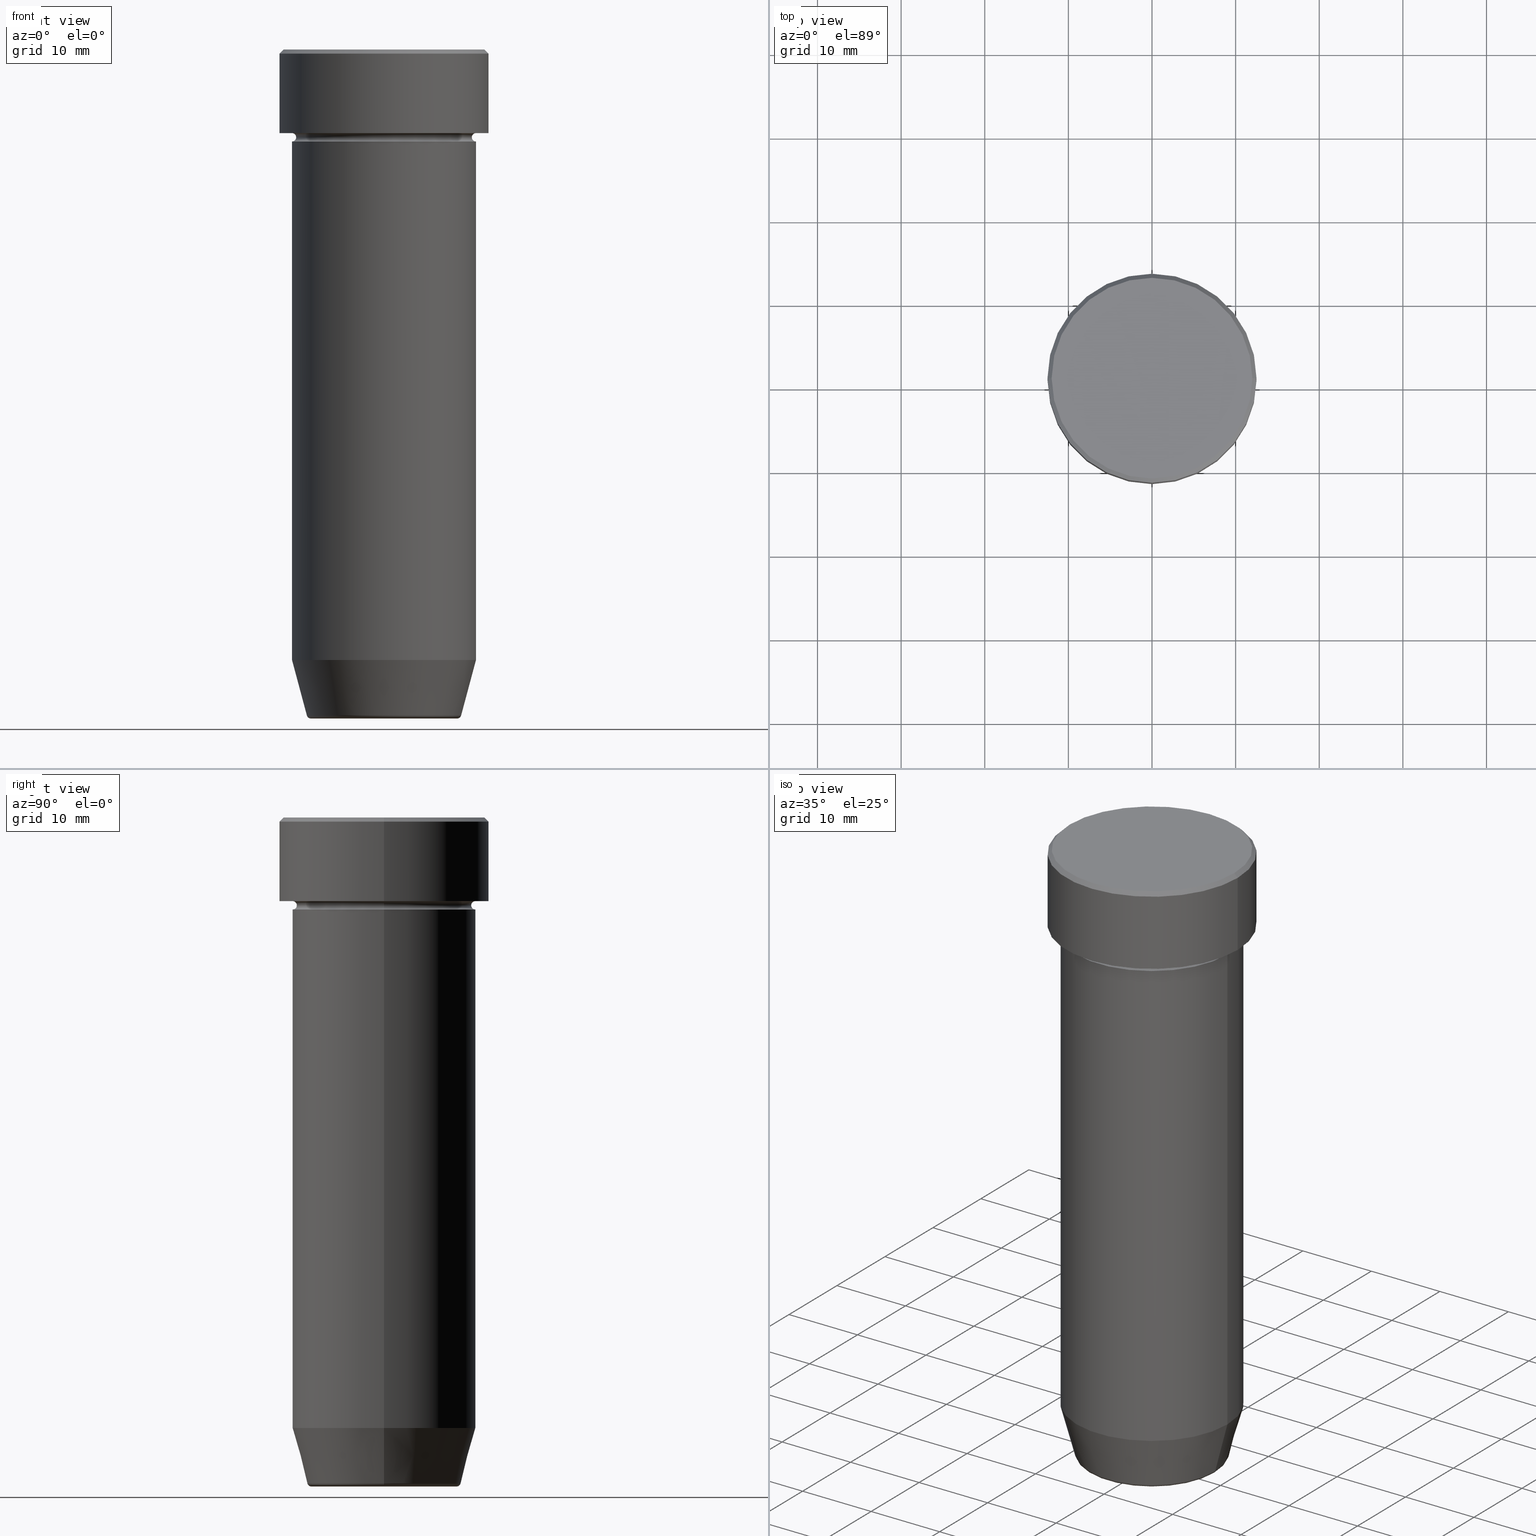
[diagram: canonical four-view strip — front | top / right | iso, engineering-drawing reading convention]
A machine part, canonical four-view strip (front | top / right | iso — engineering-drawing reading convention). The complete STEP part file that produces these views, byte-faithful:
ISO-10303-21;
HEADER;
FILE_DESCRIPTION (( 'STEP AP203' ),
    '1' );
FILE_NAME ('fd99.STEP',
    '2024-01-02T19:24:46',
    ( '' ),
    ( '' ),
    'SwSTEP 2.0',
    'SolidWorks 2019',
    '' );
FILE_SCHEMA (( 'CONFIG_CONTROL_DESIGN' ));
ENDSEC;

DATA;
#1 = EDGE_LOOP ( 'NONE', ( #567, #559, #313, #192 ) ) ;
#2 = CARTESIAN_POINT ( 'NONE',  ( 0.000000000000000000, 0.000000000000000000, 0.000000000000000000 ) ) ;
#3 = CARTESIAN_POINT ( 'NONE',  ( 0.000000000000000000, 0.000000000000000000, -10.49999999999999822 ) ) ;
#4 = VERTEX_POINT ( 'NONE', #120 ) ;
#5 = CC_DESIGN_APPROVAL ( #598, ( #29 ) ) ;
#6 = DIRECTION ( 'NONE',  ( 0.000000000000000000, -1.000000000000000000, 0.000000000000000000 ) ) ;
#7 = ORIENTED_EDGE ( 'NONE', *, *, #213, .T. ) ;
#8 = DIRECTION ( 'NONE',  ( -1.224646799147353207E-16, 1.000000000000000000, 0.000000000000000000 ) ) ;
#9 = DIRECTION ( 'NONE',  ( -0.000000000000000000, -0.000000000000000000, 1.000000000000000000 ) ) ;
#10 = AXIS2_PLACEMENT_3D ( 'NONE', #142, #250, #19 ) ;
#11 = AXIS2_PLACEMENT_3D ( 'NONE', #507, #373, #294 ) ;
#12 = VERTEX_POINT ( 'NONE', #583 ) ;
#13 = CARTESIAN_POINT ( 'NONE',  ( 0.000000000000000000, 0.000000000000000000, -27.00000000000000000 ) ) ;
#14 = VERTEX_POINT ( 'NONE', #30 ) ;
#15 = CARTESIAN_POINT ( 'NONE',  ( 0.000000000000000000, 0.000000000000000000, -10.00000000000000000 ) ) ;
#16 = CIRCLE ( 'NONE', #392, 11.00000000000000000 ) ;
#17 = EDGE_LOOP ( 'NONE', ( #139, #509, #184, #485 ) ) ;
#18 = FACE_OUTER_BOUND ( 'NONE', #419, .T. ) ;
#19 = DIRECTION ( 'NONE',  ( -1.000000000000000000, 0.000000000000000000, 0.000000000000000000 ) ) ;
#20 = FACE_OUTER_BOUND ( 'NONE', #377, .T. ) ;
#21 = LOCAL_TIME ( 20, 24, 46.00000000000000000, #589 ) ;
#22 = CARTESIAN_POINT ( 'NONE',  ( 0.000000000000000000, 0.000000000000000000, 0.000000000000000000 ) ) ;
#23 = ADVANCED_FACE ( 'NONE', ( #453 ), #223, .T. ) ;
#24 = CIRCLE ( 'NONE', #443, 11.00000000000000000 ) ;
#25 = AXIS2_PLACEMENT_3D ( 'NONE', #220, #491, #271 ) ;
#26 = PLANE ( 'NONE',  #91 ) ;
#27 = CARTESIAN_POINT ( 'NONE',  ( -11.00000000000000000, 1.347111479062088405E-15, 0.000000000000000000 ) ) ;
#28 = FACE_OUTER_BOUND ( 'NONE', #356, .T. ) ;
#29 = SECURITY_CLASSIFICATION ( '', '', #308 ) ;
#30 = CARTESIAN_POINT ( 'NONE',  ( 11.00000000000000000, 0.000000000000000000, -11.00000000000000000 ) ) ;
#31 = PERSON_AND_ORGANIZATION ( #397, #582 ) ;
#32 = ORIENTED_EDGE ( 'NONE', *, *, #351, .T. ) ;
#33 = EDGE_LOOP ( 'NONE', ( #310, #297, #339, #71 ) ) ;
#34 = DIRECTION ( 'NONE',  ( -0.000000000000000000, -0.000000000000000000, 1.000000000000000000 ) ) ;
#35 = AXIS2_PLACEMENT_3D ( 'NONE', #140, #411, #597 ) ;
#36 = EDGE_CURVE ( 'NONE', #333, #549, #201, .T. ) ;
#37 = VERTEX_POINT ( 'NONE', #318 ) ;
#38 = CALENDAR_DATE ( 2024, 2, 1 ) ;
#39 = ORIENTED_EDGE ( 'NONE', *, *, #111, .F. ) ;
#40 = ADVANCED_FACE ( 'NONE', ( #455 ), #401, .F. ) ;
#41 = CIRCLE ( 'NONE', #237, 12.00000000000000355 ) ;
#42 = ORIENTED_EDGE ( 'NONE', *, *, #104, .F. ) ;
#43 = CARTESIAN_POINT ( 'NONE',  ( -9.223655072137194821, 1.238341722557647399E-15, -79.62940952255127058 ) ) ;
#44 = ORIENTED_EDGE ( 'NONE', *, *, #412, .T. ) ;
#45 = FACE_OUTER_BOUND ( 'NONE', #430, .T. ) ;
#46 = EDGE_CURVE ( 'NONE', #500, #37, #516, .T. ) ;
#47 = ORIENTED_EDGE ( 'NONE', *, *, #256, .T. ) ;
#48 = TOROIDAL_SURFACE ( 'NONE', #451, 11.00000000000000000, 0.5000000000000000000 ) ;
#49 = CARTESIAN_POINT ( 'NONE',  ( 11.00000000000000000, 1.347111479062088405E-15, -10.50000000000000000 ) ) ;
#50 = CARTESIAN_POINT ( 'NONE',  ( 11.00000000000000000, 0.000000000000000000, -73.00000000000000000 ) ) ;
#51 = ORIENTED_EDGE ( 'NONE', *, *, #521, .F. ) ;
#52 = VECTOR ( 'NONE', #302, 1000.000000000000000 ) ;
#53 = LINE ( 'NONE', #129, #532 ) ;
#54 = VECTOR ( 'NONE', #555, 1000.000000000000114 ) ;
#55 = VERTEX_POINT ( 'NONE', #117 ) ;
#56 = DIRECTION ( 'NONE',  ( -0.000000000000000000, -0.000000000000000000, 1.000000000000000000 ) ) ;
#57 = EDGE_CURVE ( 'NONE', #14, #588, #261, .T. ) ;
#58 = ORIENTED_EDGE ( 'NONE', *, *, #368, .T. ) ;
#59 = CC_DESIGN_PERSON_AND_ORGANIZATION_ASSIGNMENT ( #299, #149, ( #74 ) ) ;
#60 = CARTESIAN_POINT ( 'NONE',  ( 11.00000000000000000, 0.000000000000000000, 0.000000000000000000 ) ) ;
#61 = AXIS2_PLACEMENT_3D ( 'NONE', #454, #236, #319 ) ;
#62 = ORIENTED_EDGE ( 'NONE', *, *, #489, .T. ) ;
#63 = AXIS2_PLACEMENT_3D ( 'NONE', #449, #408, #362 ) ;
#64 = DIRECTION ( 'NONE',  ( -0.000000000000000000, -0.000000000000000000, 1.000000000000000000 ) ) ;
#65 = EDGE_CURVE ( 'NONE', #426, #445, #483, .T. ) ;
#66 = DIRECTION ( 'NONE',  ( 0.000000000000000000, 0.000000000000000000, -1.000000000000000000 ) ) ;
#67 = PERSON_AND_ORGANIZATION ( #397, #582 ) ;
#68 = TOROIDAL_SURFACE ( 'NONE', #122, 8.740692158992660055, 0.5000000000000000000 ) ;
#69 = AXIS2_PLACEMENT_3D ( 'NONE', #360, #72, #547 ) ;
#70 = DIRECTION ( 'NONE',  ( -0.000000000000000000, -0.000000000000000000, 1.000000000000000000 ) ) ;
#71 = ORIENTED_EDGE ( 'NONE', *, *, #412, .F. ) ;
#72 = DIRECTION ( 'NONE',  ( 1.224646799147353207E-16, 1.000000000000000000, 0.000000000000000000 ) ) ;
#73 = CIRCLE ( 'NONE', #205, 11.00000000000000000 ) ;
#74 = PRODUCT ( 'fd99', 'fd99', '', ( #425 ) ) ;
#75 = FACE_OUTER_BOUND ( 'NONE', #283, .T. ) ;
#76 = CARTESIAN_POINT ( 'NONE',  ( 0.000000000000000000, 0.000000000000000000, -79.50000000000000000 ) ) ;
#77 = CIRCLE ( 'NONE', #423, 0.5000000000000004441 ) ;
#78 = CARTESIAN_POINT ( 'NONE',  ( 0.000000000000000000, 0.000000000000000000, 0.000000000000000000 ) ) ;
#79 = ADVANCED_FACE ( 'NONE', ( #165 ), #68, .T. ) ;
#80 = AXIS2_PLACEMENT_3D ( 'NONE', #560, #508, #330 ) ;
#81 = DIRECTION ( 'NONE',  ( 0.000000000000000000, -0.000000000000000000, 1.000000000000000000 ) ) ;
#82 = ORIENTED_EDGE ( 'NONE', *, *, #300, .T. ) ;
#83 = CC_DESIGN_DATE_AND_TIME_ASSIGNMENT ( #494, #452, ( #29 ) ) ;
#84 = DIRECTION ( 'NONE',  ( -0.000000000000000000, -0.000000000000000000, 1.000000000000000000 ) ) ;
#85 = LINE ( 'NONE', #380, #276 ) ;
#86 = EDGE_CURVE ( 'NONE', #277, #55, #98, .T. ) ;
#87 = DIRECTION ( 'NONE',  ( -1.000000000000000000, 0.000000000000000000, 0.000000000000000000 ) ) ;
#88 = ORIENTED_EDGE ( 'NONE', *, *, #493, .F. ) ;
#89 = DIRECTION ( 'NONE',  ( -0.000000000000000000, -0.000000000000000000, 1.000000000000000000 ) ) ;
#90 = FACE_OUTER_BOUND ( 'NONE', #33, .T. ) ;
#91 = AXIS2_PLACEMENT_3D ( 'NONE', #390, #253, #432 ) ;
#92 = ORIENTED_EDGE ( 'NONE', *, *, #446, .F. ) ;
#93 = COORDINATED_UNIVERSAL_TIME_OFFSET ( 1, 0, .AHEAD. ) ;
#94 = DIRECTION ( 'NONE',  ( 0.000000000000000000, 0.000000000000000000, -1.000000000000000000 ) ) ;
#95 = EDGE_LOOP ( 'NONE', ( #517, #245, #110, #163 ) ) ;
#96 = AXIS2_PLACEMENT_3D ( 'NONE', #2, #578, #440 ) ;
#97 = UNCERTAINTY_MEASURE_WITH_UNIT (LENGTH_MEASURE( 1.000000000000000082E-05 ), #526, 'distance_accuracy_value', 'NONE');
#98 = CIRCLE ( 'NONE', #558, 12.00000000000000355 ) ;
#99 = ORIENTED_EDGE ( 'NONE', *, *, #202, .F. ) ;
#100 = LINE ( 'NONE', #479, #133 ) ;
#101 = ORIENTED_EDGE ( 'NONE', *, *, #439, .T. ) ;
#102 = FACE_OUTER_BOUND ( 'NONE', #95, .T. ) ;
#103 = LOCAL_TIME ( 20, 24, 46.00000000000000000, #93 ) ;
#104 = EDGE_CURVE ( 'NONE', #459, #546, #194, .T. ) ;
#105 = DIRECTION ( 'NONE',  ( -0.000000000000000000, -0.000000000000000000, 1.000000000000000000 ) ) ;
#106 = VECTOR ( 'NONE', #64, 1000.000000000000000 ) ;
#107 = CARTESIAN_POINT ( 'NONE',  ( 8.740692158992660055, 0.000000000000000000, -79.50000000000000000 ) ) ;
#108 =( GEOMETRIC_REPRESENTATION_CONTEXT ( 3 ) GLOBAL_UNCERTAINTY_ASSIGNED_CONTEXT ( ( #97 ) ) GLOBAL_UNIT_ASSIGNED_CONTEXT ( ( #526, #572, #301 ) ) REPRESENTATION_CONTEXT ( 'NONE', 'WORKASPACE' ) );
#109 = DIRECTION ( 'NONE',  ( -1.000000000000000000, 0.000000000000000000, 0.000000000000000000 ) ) ;
#110 = ORIENTED_EDGE ( 'NONE', *, *, #172, .F. ) ;
#111 = EDGE_CURVE ( 'NONE', #37, #588, #364, .T. ) ;
#112 = ORIENTED_EDGE ( 'NONE', *, *, #488, .T. ) ;
#113 = APPROVAL_STATUS ( 'not_yet_approved' ) ;
#114 = DIRECTION ( 'NONE',  ( -0.000000000000000000, -0.000000000000000000, 1.000000000000000000 ) ) ;
#115 = CIRCLE ( 'NONE', #497, 0.5000000000000004441 ) ;
#116 = PERSON_AND_ORGANIZATION ( #397, #582 ) ;
#117 = CARTESIAN_POINT ( 'NONE',  ( -12.00000000000000355, 0.000000000000000000, 0.000000000000000000 ) ) ;
#118 = PRODUCT_DEFINITION ( 'NEZN�M�', '', #191, #468 ) ;
#119 = ORIENTED_EDGE ( 'NONE', *, *, #348, .T. ) ;
#120 = CARTESIAN_POINT ( 'NONE',  ( 12.50000000000000000, 0.000000000000000000, -0.4999999999999988343 ) ) ;
#121 = CARTESIAN_POINT ( 'NONE',  ( 12.50000000000000000, 0.000000000000000000, -10.00000000000000000 ) ) ;
#122 = AXIS2_PLACEMENT_3D ( 'NONE', #76, #448, #428 ) ;
#123 = DIRECTION ( 'NONE',  ( 1.000000000000000000, 0.000000000000000000, 0.000000000000000000 ) ) ;
#124 = PLANE ( 'NONE',  #429 ) ;
#125 = DIRECTION ( 'NONE',  ( -0.000000000000000000, -0.000000000000000000, 1.000000000000000000 ) ) ;
#126 = VECTOR ( 'NONE', #556, 999.9999999999998863 ) ;
#127 = PRODUCT_RELATED_PRODUCT_CATEGORY ( 'detail', '', ( #74 ) ) ;
#128 = VERTEX_POINT ( 'NONE', #135 ) ;
#129 = CARTESIAN_POINT ( 'NONE',  ( -12.50000000000000000, 1.530808498934191521E-15, 0.000000000000000000 ) ) ;
#130 = EDGE_CURVE ( 'NONE', #4, #128, #505, .T. ) ;
#131 = DIRECTION ( 'NONE',  ( -0.000000000000000000, -0.000000000000000000, 1.000000000000000000 ) ) ;
#132 = FACE_OUTER_BOUND ( 'NONE', #279, .T. ) ;
#133 = VECTOR ( 'NONE', #227, 1000.000000000000000 ) ;
#134 = ORIENTED_EDGE ( 'NONE', *, *, #137, .T. ) ;
#135 = CARTESIAN_POINT ( 'NONE',  ( -12.50000000000000000, 1.530808498934191521E-15, -0.4999999999999988343 ) ) ;
#136 = DIRECTION ( 'NONE',  ( 1.000000000000000000, 0.000000000000000000, 0.000000000000000000 ) ) ;
#137 = EDGE_CURVE ( 'NONE', #445, #426, #177, .T. ) ;
#138 = DIRECTION ( 'NONE',  ( 1.000000000000000000, 0.000000000000000000, 0.000000000000000000 ) ) ;
#139 = ORIENTED_EDGE ( 'NONE', *, *, #46, .T. ) ;
#140 = CARTESIAN_POINT ( 'NONE',  ( 0.000000000000000000, 0.000000000000000000, 0.000000000000000000 ) ) ;
#141 = ORIENTED_EDGE ( 'NONE', *, *, #439, .F. ) ;
#142 = CARTESIAN_POINT ( 'NONE',  ( 0.000000000000000000, 0.000000000000000000, 0.000000000000000000 ) ) ;
#143 = ORIENTED_EDGE ( 'NONE', *, *, #65, .F. ) ;
#144 = EDGE_CURVE ( 'NONE', #596, #218, #77, .T. ) ;
#145 = CARTESIAN_POINT ( 'NONE',  ( 0.000000000000000000, 0.000000000000000000, -0.4999999999999988343 ) ) ;
#146 = CARTESIAN_POINT ( 'NONE',  ( 0.000000000000000000, 0.000000000000000000, -11.00000000000000000 ) ) ;
#147 = AXIS2_PLACEMENT_3D ( 'NONE', #266, #215, #161 ) ;
#148 = CARTESIAN_POINT ( 'NONE',  ( -12.50000000000000000, 1.530808498934191521E-15, -10.00000000000000000 ) ) ;
#149 = PERSON_AND_ORGANIZATION_ROLE ( 'design_owner' ) ;
#150 = ORIENTED_EDGE ( 'NONE', *, *, #446, .T. ) ;
#151 = AXIS2_PLACEMENT_3D ( 'NONE', #406, #125, #87 ) ;
#152 = FACE_OUTER_BOUND ( 'NONE', #321, .T. ) ;
#153 = APPROVAL_DATE_TIME ( #164, #548 ) ;
#154 = CIRCLE ( 'NONE', #492, 9.223655072137194821 ) ;
#155 = EDGE_CURVE ( 'NONE', #459, #549, #154, .T. ) ;
#156 = CARTESIAN_POINT ( 'NONE',  ( 0.000000000000000000, 0.000000000000000000, 0.000000000000000000 ) ) ;
#157 = TOROIDAL_SURFACE ( 'NONE', #502, 11.00000000000000000, 0.5000000000000000000 ) ;
#158 = ORIENTED_EDGE ( 'NONE', *, *, #458, .F. ) ;
#159 = CONICAL_SURFACE ( 'NONE', #478, 9.124355652982140796, 0.2617993877991491303 ) ;
#160 = PERSON_AND_ORGANIZATION_ROLE ( 'classification_officer' ) ;
#161 = DIRECTION ( 'NONE',  ( 1.000000000000000000, 0.000000000000000000, 0.000000000000000000 ) ) ;
#162 = CC_DESIGN_PERSON_AND_ORGANIZATION_ASSIGNMENT ( #595, #219, ( #118 ) ) ;
#163 = ORIENTED_EDGE ( 'NONE', *, *, #166, .F. ) ;
#164 = DATE_AND_TIME ( #317, #21 ) ;
#165 = FACE_OUTER_BOUND ( 'NONE', #484, .T. ) ;
#166 = EDGE_CURVE ( 'NONE', #55, #128, #424, .T. ) ;
#167 = CIRCLE ( 'NONE', #400, 10.49999999999999822 ) ;
#168 = ADVANCED_FACE ( 'NONE', ( #384 ), #159, .T. ) ;
#169 = ORIENTED_EDGE ( 'NONE', *, *, #351, .F. ) ;
#170 = ORIENTED_EDGE ( 'NONE', *, *, #586, .T. ) ;
#171 = AXIS2_PLACEMENT_3D ( 'NONE', #534, #70, #263 ) ;
#172 = EDGE_CURVE ( 'NONE', #128, #4, #208, .T. ) ;
#173 = ORIENTED_EDGE ( 'NONE', *, *, #155, .F. ) ;
#174 = APPROVAL_STATUS ( 'not_yet_approved' ) ;
#175 = DIRECTION ( 'NONE',  ( 1.000000000000000000, 0.000000000000000000, 0.000000000000000000 ) ) ;
#176 = FACE_OUTER_BOUND ( 'NONE', #422, .T. ) ;
#177 = CIRCLE ( 'NONE', #252, 12.50000000000000000 ) ;
#178 = EDGE_CURVE ( 'NONE', #445, #4, #100, .T. ) ;
#179 = DIRECTION ( 'NONE',  ( 1.000000000000000000, 0.000000000000000000, 0.000000000000000000 ) ) ;
#180 = EDGE_LOOP ( 'NONE', ( #101, #119, #188, #186 ) ) ;
#181 = CARTESIAN_POINT ( 'NONE',  ( -11.00000000000000000, 1.347111479062088405E-15, 0.000000000000000000 ) ) ;
#182 = DIRECTION ( 'NONE',  ( 1.000000000000000000, 0.000000000000000000, 0.000000000000000000 ) ) ;
#183 = AXIS2_PLACEMENT_3D ( 'NONE', #347, #243, #396 ) ;
#184 = ORIENTED_EDGE ( 'NONE', *, *, #57, .F. ) ;
#185 = DIRECTION ( 'NONE',  ( -0.000000000000000000, -0.000000000000000000, 1.000000000000000000 ) ) ;
#186 = ORIENTED_EDGE ( 'NONE', *, *, #368, .F. ) ;
#187 = CARTESIAN_POINT ( 'NONE',  ( 9.223655072137194821, 0.000000000000000000, -79.62940952255127058 ) ) ;
#188 = ORIENTED_EDGE ( 'NONE', *, *, #211, .F. ) ;
#189 = PERSON_AND_ORGANIZATION ( #397, #582 ) ;
#190 = CARTESIAN_POINT ( 'NONE',  ( 0.000000000000000000, 0.000000000000000000, -73.00000000000000000 ) ) ;
#191 = PRODUCT_DEFINITION_FORMATION_WITH_SPECIFIED_SOURCE ( 'LIBOVOLN�', '', #74, .NOT_KNOWN. ) ;
#192 = ORIENTED_EDGE ( 'NONE', *, *, #489, .F. ) ;
#193 = APPROVAL_ROLE ( '' ) ;
#194 = LINE ( 'NONE', #280, #54 ) ;
#195 = ORIENTED_EDGE ( 'NONE', *, *, #514, .F. ) ;
#196 = AXIS2_PLACEMENT_3D ( 'NONE', #533, #316, #179 ) ;
#197 = CARTESIAN_POINT ( 'NONE',  ( 0.000000000000000000, 0.000000000000000000, -27.00000000000000000 ) ) ;
#198 = CARTESIAN_POINT ( 'NONE',  ( 0.000000000000000000, 0.000000000000000000, 0.000000000000000000 ) ) ;
#199 = DIRECTION ( 'NONE',  ( -0.000000000000000000, -0.000000000000000000, 1.000000000000000000 ) ) ;
#200 = ADVANCED_FACE ( 'NONE', ( #413 ), #525, .T. ) ;
#201 = CIRCLE ( 'NONE', #69, 0.5000000000000004441 ) ;
#202 = EDGE_CURVE ( 'NONE', #12, #596, #577, .T. ) ;
#203 = CARTESIAN_POINT ( 'NONE',  ( 0.000000000000000000, 0.000000000000000000, -10.49999999999999822 ) ) ;
#204 = CARTESIAN_POINT ( 'NONE',  ( -11.00000000000000000, 1.347111479062088405E-15, -11.00000000000000000 ) ) ;
#205 = AXIS2_PLACEMENT_3D ( 'NONE', #13, #185, #322 ) ;
#206 = COORDINATED_UNIVERSAL_TIME_OFFSET ( 1, 0, .AHEAD. ) ;
#207 = DIRECTION ( 'NONE',  ( -0.000000000000000000, -0.000000000000000000, 1.000000000000000000 ) ) ;
#208 = CIRCLE ( 'NONE', #528, 12.50000000000000000 ) ;
#209 = APPLICATION_PROTOCOL_DEFINITION ( 'international standard', 'config_control_design', 1994, #249 ) ;
#210 = ADVANCED_FACE ( 'NONE', ( #580 ), #490, .T. ) ;
#211 = EDGE_CURVE ( 'NONE', #329, #387, #303, .T. ) ;
#212 = CIRCLE ( 'NONE', #309, 11.00000000000000000 ) ;
#213 = EDGE_CURVE ( 'NONE', #333, #307, #477, .T. ) ;
#214 = PERSON_AND_ORGANIZATION ( #397, #582 ) ;
#215 = DIRECTION ( 'NONE',  ( -0.000000000000000000, -0.000000000000000000, 1.000000000000000000 ) ) ;
#216 = CONICAL_SURFACE ( 'NONE', #10, 12.00000000000000355, 0.7853981633974465026 ) ;
#217 = VECTOR ( 'NONE', #284, 1000.000000000000000 ) ;
#218 = VERTEX_POINT ( 'NONE', #282 ) ;
#219 = PERSON_AND_ORGANIZATION_ROLE ( 'creator' ) ;
#220 = CARTESIAN_POINT ( 'NONE',  ( 0.000000000000000000, 0.000000000000000000, -27.00000000000000000 ) ) ;
#221 = ORIENTED_EDGE ( 'NONE', *, *, #514, .T. ) ;
#222 = EDGE_LOOP ( 'NONE', ( #470, #592 ) ) ;
#223 = CYLINDRICAL_SURFACE ( 'NONE', #503, 11.00000000000000000 ) ;
#224 = CARTESIAN_POINT ( 'NONE',  ( 11.00000000000000000, 0.000000000000000000, -27.00000000000000000 ) ) ;
#225 = EDGE_CURVE ( 'NONE', #307, #333, #431, .T. ) ;
#226 = AXIS2_PLACEMENT_3D ( 'NONE', #354, #114, #590 ) ;
#227 = DIRECTION ( 'NONE',  ( -0.000000000000000000, -0.000000000000000000, 1.000000000000000000 ) ) ;
#228 = ADVANCED_FACE ( 'NONE', ( #75 ), #157, .F. ) ;
#229 = CARTESIAN_POINT ( 'NONE',  ( -11.00000000000000000, 1.347111479062088405E-15, -27.00000000000000000 ) ) ;
#230 = CARTESIAN_POINT ( 'NONE',  ( 0.000000000000000000, 0.000000000000000000, -27.00000000000000000 ) ) ;
#231 = EDGE_LOOP ( 'NONE', ( #238, #274 ) ) ;
#232 = APPROVAL_DATE_TIME ( #336, #598 ) ;
#233 = DIRECTION ( 'NONE',  ( 1.000000000000000000, 0.000000000000000000, 0.000000000000000000 ) ) ;
#234 = ORIENTED_EDGE ( 'NONE', *, *, #225, .T. ) ;
#235 = DIRECTION ( 'NONE',  ( -1.000000000000000000, -1.224646799147353454E-16, 0.000000000000000000 ) ) ;
#236 = DIRECTION ( 'NONE',  ( -0.000000000000000000, -0.000000000000000000, 1.000000000000000000 ) ) ;
#237 = AXIS2_PLACEMENT_3D ( 'NONE', #593, #545, #123 ) ;
#238 = ORIENTED_EDGE ( 'NONE', *, *, #211, .T. ) ;
#239 = DIRECTION ( 'NONE',  ( -1.000000000000000000, 0.000000000000000000, 0.000000000000000000 ) ) ;
#240 = CARTESIAN_POINT ( 'NONE',  ( -11.00000000000000000, 0.000000000000000000, -10.00000000000000000 ) ) ;
#241 = EDGE_LOOP ( 'NONE', ( #293, #62, #58, #158 ) ) ;
#242 = DIRECTION ( 'NONE',  ( 1.000000000000000000, 0.000000000000000000, 0.000000000000000000 ) ) ;
#243 = DIRECTION ( 'NONE',  ( 0.000000000000000000, 0.000000000000000000, -1.000000000000000000 ) ) ;
#244 = AXIS2_PLACEMENT_3D ( 'NONE', #190, #9, #501 ) ;
#245 = ORIENTED_EDGE ( 'NONE', *, *, #521, .T. ) ;
#246 = CARTESIAN_POINT ( 'NONE',  ( -8.740692158992660055, 1.099999016768739653E-15, -80.00000000000000000 ) ) ;
#247 = ADVANCED_FACE ( 'NONE', ( #132 ), #324, .F. ) ;
#248 = EDGE_CURVE ( 'NONE', #549, #459, #444, .T. ) ;
#249 = APPLICATION_CONTEXT ( 'configuration controlled 3d designs of mechanical parts and assemblies' ) ;
#250 = DIRECTION ( 'NONE',  ( 0.000000000000000000, 0.000000000000000000, -1.000000000000000000 ) ) ;
#251 = DIRECTION ( 'NONE',  ( -0.000000000000000000, -0.000000000000000000, 1.000000000000000000 ) ) ;
#252 = AXIS2_PLACEMENT_3D ( 'NONE', #15, #89, #379 ) ;
#253 = DIRECTION ( 'NONE',  ( 0.000000000000000000, 0.000000000000000000, -1.000000000000000000 ) ) ;
#254 = CALENDAR_DATE ( 2024, 2, 1 ) ;
#255 = CC_DESIGN_SECURITY_CLASSIFICATION ( #29, ( #191 ) ) ;
#256 = EDGE_CURVE ( 'NONE', #55, #277, #41, .T. ) ;
#257 = DIRECTION ( 'NONE',  ( -0.000000000000000000, -0.000000000000000000, 1.000000000000000000 ) ) ;
#258 = CARTESIAN_POINT ( 'NONE',  ( 0.000000000000000000, 0.000000000000000000, -10.00000000000000000 ) ) ;
#259 = CYLINDRICAL_SURFACE ( 'NONE', #457, 11.00000000000000000 ) ;
#260 = CC_DESIGN_PERSON_AND_ORGANIZATION_ASSIGNMENT ( #214, #585, ( #191 ) ) ;
#261 = CIRCLE ( 'NONE', #147, 11.00000000000000000 ) ;
#262 = ADVANCED_FACE ( 'NONE', ( #376 ), #469, .T. ) ;
#263 = DIRECTION ( 'NONE',  ( 1.000000000000000000, 0.000000000000000000, 0.000000000000000000 ) ) ;
#264 = ORIENTED_EDGE ( 'NONE', *, *, #248, .F. ) ;
#265 = APPROVAL_ROLE ( '' ) ;
#266 = CARTESIAN_POINT ( 'NONE',  ( 0.000000000000000000, 0.000000000000000000, -11.00000000000000000 ) ) ;
#267 = EDGE_LOOP ( 'NONE', ( #367, #372, #415, #363 ) ) ;
#268 = CARTESIAN_POINT ( 'NONE',  ( 0.000000000000000000, 0.000000000000000000, -80.00000000000000000 ) ) ;
#269 = ORIENTED_EDGE ( 'NONE', *, *, #86, .T. ) ;
#270 = DATE_AND_TIME ( #273, #472 ) ;
#271 = DIRECTION ( 'NONE',  ( -1.000000000000000000, 0.000000000000000000, -0.000000000000000000 ) ) ;
#272 = DIRECTION ( 'NONE',  ( 1.000000000000000000, 0.000000000000000000, 0.000000000000000000 ) ) ;
#273 = CALENDAR_DATE ( 2024, 2, 1 ) ;
#274 = ORIENTED_EDGE ( 'NONE', *, *, #458, .T. ) ;
#275 = CARTESIAN_POINT ( 'NONE',  ( 12.00000000000000355, 1.469576158976824342E-15, 0.000000000000000000 ) ) ;
#276 = VECTOR ( 'NONE', #369, 1000.000000000000114 ) ;
#277 = VERTEX_POINT ( 'NONE', #529 ) ;
#278 = AXIS2_PLACEMENT_3D ( 'NONE', #268, #366, #552 ) ;
#279 = EDGE_LOOP ( 'NONE', ( #584, #539, #44, #169 ) ) ;
#280 = CARTESIAN_POINT ( 'NONE',  ( 9.124355652982140796, 0.000000000000000000, -80.00000000000000000 ) ) ;
#281 = DIRECTION ( 'NONE',  ( -0.000000000000000000, -0.000000000000000000, 1.000000000000000000 ) ) ;
#282 = CARTESIAN_POINT ( 'NONE',  ( 11.00000000000000000, 1.347111479062088405E-15, -10.00000000000000000 ) ) ;
#283 = EDGE_LOOP ( 'NONE', ( #99, #221, #82, #92 ) ) ;
#284 = DIRECTION ( 'NONE',  ( -0.000000000000000000, -0.000000000000000000, 1.000000000000000000 ) ) ;
#285 = FACE_OUTER_BOUND ( 'NONE', #17, .T. ) ;
#286 = TOROIDAL_SURFACE ( 'NONE', #61, 8.740692158992660055, 0.5000000000000000000 ) ;
#287 = ADVANCED_FACE ( 'NONE', ( #28 ), #259, .T. ) ;
#288 = ORIENTED_EDGE ( 'NONE', *, *, #213, .F. ) ;
#289 = DIRECTION ( 'NONE',  ( -0.000000000000000000, -0.000000000000000000, 1.000000000000000000 ) ) ;
#290 = FACE_OUTER_BOUND ( 'NONE', #544, .T. ) ;
#291 = ORIENTED_EDGE ( 'NONE', *, *, #352, .T. ) ;
#292 = CARTESIAN_POINT ( 'NONE',  ( 0.000000000000000000, 0.000000000000000000, -80.00000000000000000 ) ) ;
#293 = ORIENTED_EDGE ( 'NONE', *, *, #348, .F. ) ;
#294 = DIRECTION ( 'NONE',  ( 1.000000000000000000, 0.000000000000000000, 0.000000000000000000 ) ) ;
#295 = DIRECTION ( 'NONE',  ( 1.000000000000000000, 0.000000000000000000, 0.000000000000000000 ) ) ;
#296 = CC_DESIGN_APPROVAL ( #548, ( #191 ) ) ;
#297 = ORIENTED_EDGE ( 'NONE', *, *, #144, .T. ) ;
#298 = DIRECTION ( 'NONE',  ( 0.000000000000000000, -1.000000000000000000, 0.000000000000000000 ) ) ;
#299 = PERSON_AND_ORGANIZATION ( #397, #582 ) ;
#300 = EDGE_CURVE ( 'NONE', #588, #14, #24, .T. ) ;
#301 =( NAMED_UNIT ( * ) SI_UNIT ( $, .STERADIAN. ) SOLID_ANGLE_UNIT ( ) );
#302 = DIRECTION ( 'NONE',  ( -0.000000000000000000, -0.000000000000000000, 1.000000000000000000 ) ) ;
#303 = CIRCLE ( 'NONE', #536, 11.00000000000000000 ) ;
#304 = CLOSED_SHELL ( 'NONE', ( #346, #434, #228, #537, #338, #570, #562, #262, #395, #287, #375, #247, #200 ) ) ;
#305 = EDGE_CURVE ( 'NONE', #307, #459, #476, .T. ) ;
#306 = VERTEX_POINT ( 'NONE', #433 ) ;
#307 = VERTEX_POINT ( 'NONE', #394 ) ;
#308 = SECURITY_CLASSIFICATION_LEVEL ( 'unclassified' ) ;
#310 = ORIENTED_EDGE ( 'NONE', *, *, #202, .T. ) ;
#309 = AXIS2_PLACEMENT_3D ( 'NONE', #197, #435, #531 ) ;
#311 = ADVANCED_BREP_SHAPE_REPRESENTATION ( 'fd99', ( #331, #527, #463 ), #108 ) ;
#312 = AXIS2_PLACEMENT_3D ( 'NONE', #557, #418, #138 ) ;
#313 = ORIENTED_EDGE ( 'NONE', *, *, #104, .T. ) ;
#314 = APPROVAL_ROLE ( '' ) ;
#315 = DIRECTION ( 'NONE',  ( -0.000000000000000000, -0.000000000000000000, 1.000000000000000000 ) ) ;
#316 = DIRECTION ( 'NONE',  ( -0.000000000000000000, -0.000000000000000000, 1.000000000000000000 ) ) ;
#317 = CALENDAR_DATE ( 2024, 2, 1 ) ;
#318 = CARTESIAN_POINT ( 'NONE',  ( -11.00000000000000000, 1.347111479062088405E-15, -27.00000000000000000 ) ) ;
#319 = DIRECTION ( 'NONE',  ( 1.000000000000000000, 0.000000000000000000, 0.000000000000000000 ) ) ;
#320 = CC_DESIGN_APPROVAL ( #427, ( #118 ) ) ;
#321 = EDGE_LOOP ( 'NONE', ( #405, #143 ) ) ;
#322 = DIRECTION ( 'NONE',  ( 1.000000000000000000, 0.000000000000000000, 0.000000000000000000 ) ) ;
#323 = AXIS2_PLACEMENT_3D ( 'NONE', #198, #480, #388 ) ;
#324 = TOROIDAL_SURFACE ( 'NONE', #63, 11.00000000000000000, 0.5000000000000000000 ) ;
#325 = DIRECTION ( 'NONE',  ( -0.000000000000000000, -0.000000000000000000, 1.000000000000000000 ) ) ;
#326 = ORIENTED_EDGE ( 'NONE', *, *, #36, .T. ) ;
#327 = CC_DESIGN_PERSON_AND_ORGANIZATION_ASSIGNMENT ( #447, #160, ( #29 ) ) ;
#328 = DIRECTION ( 'NONE',  ( -1.000000000000000000, 1.224646799147353454E-16, 0.000000000000000000 ) ) ;
#329 = VERTEX_POINT ( 'NONE', #575 ) ;
#330 = DIRECTION ( 'NONE',  ( 1.000000000000000000, 0.000000000000000000, 0.000000000000000000 ) ) ;
#331 = MANIFOLD_SOLID_BREP ( 'Zkosen�1', #304 ) ;
#332 = EDGE_CURVE ( 'NONE', #500, #14, #475, .T. ) ;
#333 = VERTEX_POINT ( 'NONE', #246 ) ;
#334 = DIRECTION ( 'NONE',  ( 1.000000000000000000, 0.000000000000000000, 0.000000000000000000 ) ) ;
#335 = ORIENTED_EDGE ( 'NONE', *, *, #166, .T. ) ;
#336 = DATE_AND_TIME ( #383, #103 ) ;
#337 = DIRECTION ( 'NONE',  ( 0.000000000000000000, 0.000000000000000000, -1.000000000000000000 ) ) ;
#338 = ADVANCED_FACE ( 'NONE', ( #18 ), #340, .T. ) ;
#339 = ORIENTED_EDGE ( 'NONE', *, *, #352, .F. ) ;
#340 = CYLINDRICAL_SURFACE ( 'NONE', #323, 12.50000000000000000 ) ;
#341 = CARTESIAN_POINT ( 'NONE',  ( 11.00000000000000000, 0.000000000000000000, 0.000000000000000000 ) ) ;
#342 = TOROIDAL_SURFACE ( 'NONE', #355, 11.00000000000000000, 0.5000000000000000000 ) ;
#343 = PLANE ( 'NONE',  #183 ) ;
#344 = ADVANCED_FACE ( 'NONE', ( #438 ), #522, .T. ) ;
#345 = CIRCLE ( 'NONE', #381, 11.00000000000000000 ) ;
#346 = ADVANCED_FACE ( 'NONE', ( #102 ), #216, .T. ) ;
#347 = CARTESIAN_POINT ( 'NONE',  ( 0.000000000000000000, 12.50000000000000000, -10.00000000000000000 ) ) ;
#348 = EDGE_CURVE ( 'NONE', #306, #387, #391, .T. ) ;
#349 = CARTESIAN_POINT ( 'NONE',  ( 0.000000000000000000, 0.000000000000000000, -10.49999999999999822 ) ) ;
#350 = CIRCLE ( 'NONE', #464, 0.5000000000000004441 ) ;
#351 = EDGE_CURVE ( 'NONE', #218, #520, #345, .T. ) ;
#352 = EDGE_CURVE ( 'NONE', #520, #218, #16, .T. ) ;
#353 = DIRECTION ( 'NONE',  ( 1.000000000000000000, 0.000000000000000000, 0.000000000000000000 ) ) ;
#354 = CARTESIAN_POINT ( 'NONE',  ( 0.000000000000000000, 0.000000000000000000, -10.00000000000000000 ) ) ;
#355 = AXIS2_PLACEMENT_3D ( 'NONE', #414, #416, #361 ) ;
#356 = EDGE_LOOP ( 'NONE', ( #39, #170, #442, #563 ) ) ;
#357 = ORIENTED_EDGE ( 'NONE', *, *, #130, .F. ) ;
#358 = CC_DESIGN_DATE_AND_TIME_ASSIGNMENT ( #270, #404, ( #118 ) ) ;
#359 = AXIS2_PLACEMENT_3D ( 'NONE', #540, #34, #353 ) ;
#360 = CARTESIAN_POINT ( 'NONE',  ( -8.740692158992660055, 1.070426067484272913E-15, -79.50000000000000000 ) ) ;
#361 = DIRECTION ( 'NONE',  ( -1.000000000000000000, 0.000000000000000000, 0.000000000000000000 ) ) ;
#362 = DIRECTION ( 'NONE',  ( -1.000000000000000000, 0.000000000000000000, 0.000000000000000000 ) ) ;
#363 = ORIENTED_EDGE ( 'NONE', *, *, #130, .T. ) ;
#364 = LINE ( 'NONE', #181, #217 ) ;
#365 = LOCAL_TIME ( 20, 24, 46.00000000000000000, #543 ) ;
#366 = DIRECTION ( 'NONE',  ( 0.000000000000000000, 0.000000000000000000, -1.000000000000000000 ) ) ;
#367 = ORIENTED_EDGE ( 'NONE', *, *, #486, .F. ) ;
#368 = EDGE_CURVE ( 'NONE', #546, #329, #389, .T. ) ;
#369 = DIRECTION ( 'NONE',  ( -0.2588190451025205174, 3.169619151431761243E-17, 0.9659258262890684232 ) ) ;
#370 = AXIS2_PLACEMENT_3D ( 'NONE', #22, #565, #334 ) ;
#371 = DIRECTION ( 'NONE',  ( -0.000000000000000000, -0.000000000000000000, 1.000000000000000000 ) ) ;
#372 = ORIENTED_EDGE ( 'NONE', *, *, #65, .T. ) ;
#373 = DIRECTION ( 'NONE',  ( 0.000000000000000000, 0.000000000000000000, -1.000000000000000000 ) ) ;
#374 = CARTESIAN_POINT ( 'NONE',  ( -11.00000000000000000, 1.347111479062088405E-15, -10.49999999999999822 ) ) ;
#375 = ADVANCED_FACE ( 'NONE', ( #20 ), #48, .F. ) ;
#376 = FACE_OUTER_BOUND ( 'NONE', #267, .T. ) ;
#377 = EDGE_LOOP ( 'NONE', ( #195, #88, #150, #553 ) ) ;
#378 = APPROVAL_STATUS ( 'not_yet_approved' ) ;
#379 = DIRECTION ( 'NONE',  ( 1.000000000000000000, 0.000000000000000000, 0.000000000000000000 ) ) ;
#380 = CARTESIAN_POINT ( 'NONE',  ( -9.124355652982140796, 1.117411294470663595E-15, -80.00000000000000000 ) ) ;
#381 = AXIS2_PLACEMENT_3D ( 'NONE', #482, #199, #109 ) ;
#382 = ORIENTED_EDGE ( 'NONE', *, *, #305, .T. ) ;
#383 = CALENDAR_DATE ( 2024, 2, 1 ) ;
#384 = FACE_OUTER_BOUND ( 'NONE', #467, .T. ) ;
#385 = CARTESIAN_POINT ( 'NONE',  ( -11.00000000000000000, 0.000000000000000000, -10.50000000000000000 ) ) ;
#386 = DIRECTION ( 'NONE',  ( -1.000000000000000000, 0.000000000000000000, 0.000000000000000000 ) ) ;
#387 = VERTEX_POINT ( 'NONE', #229 ) ;
#388 = DIRECTION ( 'NONE',  ( 1.000000000000000000, 0.000000000000000000, 0.000000000000000000 ) ) ;
#389 = LINE ( 'NONE', #341, #441 ) ;
#390 = CARTESIAN_POINT ( 'NONE',  ( 0.000000000000000000, 11.00000000000000000, -27.00000000000000000 ) ) ;
#391 = LINE ( 'NONE', #27, #106 ) ;
#392 = AXIS2_PLACEMENT_3D ( 'NONE', #258, #207, #386 ) ;
#393 = CARTESIAN_POINT ( 'NONE',  ( 10.49999999999999822, 0.000000000000000000, -10.49999999999999822 ) ) ;
#394 = CARTESIAN_POINT ( 'NONE',  ( 8.740692158992660055, 0.000000000000000000, -80.00000000000000000 ) ) ;
#395 = ADVANCED_FACE ( 'NONE', ( #436, #152 ), #343, .T. ) ;
#396 = DIRECTION ( 'NONE',  ( -1.000000000000000000, 0.000000000000000000, -0.000000000000000000 ) ) ;
#397 = PERSON ( 'NEUR�EN�', 'NEUR�EN�', 'NEUR�EN�', ('NEUR�EN�'), ('NEUR�EN�'), ('NEUR�EN�') ) ;
#398 = CARTESIAN_POINT ( 'NONE',  ( 0.000000000000000000, 0.000000000000000000, 0.000000000000000000 ) ) ;
#399 = DIRECTION ( 'NONE',  ( 1.000000000000000000, 0.000000000000000000, 0.000000000000000000 ) ) ;
#400 = AXIS2_PLACEMENT_3D ( 'NONE', #3, #281, #136 ) ;
#401 = PLANE ( 'NONE',  #25 ) ;
#402 = ORIENTED_EDGE ( 'NONE', *, *, #36, .F. ) ;
#403 = ORIENTED_EDGE ( 'NONE', *, *, #172, .T. ) ;
#404 = DATE_TIME_ROLE ( 'creation_date' ) ;
#405 = ORIENTED_EDGE ( 'NONE', *, *, #137, .F. ) ;
#406 = CARTESIAN_POINT ( 'NONE',  ( 0.000000000000000000, 0.000000000000000000, -79.62940952255127058 ) ) ;
#407 = ORIENTED_EDGE ( 'NONE', *, *, #256, .F. ) ;
#408 = DIRECTION ( 'NONE',  ( 0.000000000000000000, 0.000000000000000000, -1.000000000000000000 ) ) ;
#409 = APPROVAL_DATE_TIME ( #481, #427 ) ;
#410 = DIRECTION ( 'NONE',  ( -0.000000000000000000, -0.000000000000000000, 1.000000000000000000 ) ) ;
#411 = DIRECTION ( 'NONE',  ( -0.000000000000000000, -0.000000000000000000, 1.000000000000000000 ) ) ;
#412 = EDGE_CURVE ( 'NONE', #12, #520, #115, .T. ) ;
#413 = FACE_OUTER_BOUND ( 'NONE', #506, .T. ) ;
#414 = CARTESIAN_POINT ( 'NONE',  ( 0.000000000000000000, 0.000000000000000000, -10.50000000000000000 ) ) ;
#415 = ORIENTED_EDGE ( 'NONE', *, *, #178, .T. ) ;
#416 = DIRECTION ( 'NONE',  ( 0.000000000000000000, 0.000000000000000000, -1.000000000000000000 ) ) ;
#417 = APPROVAL_PERSON_ORGANIZATION ( #189, #598, #193 ) ;
#418 = DIRECTION ( 'NONE',  ( 0.000000000000000000, 0.000000000000000000, -1.000000000000000000 ) ) ;
#419 = EDGE_LOOP ( 'NONE', ( #134, #461, #403, #513 ) ) ;
#420 = DIRECTION ( 'NONE',  ( 1.000000000000000000, 0.000000000000000000, 0.000000000000000000 ) ) ;
#421 = APPLICATION_PROTOCOL_DEFINITION ( 'international standard', 'config_control_design', 1994, #515 ) ;
#422 = EDGE_LOOP ( 'NONE', ( #47, #269 ) ) ;
#423 = AXIS2_PLACEMENT_3D ( 'NONE', #49, #8, #235 ) ;
#424 = LINE ( 'NONE', #568, #579 ) ;
#425 = MECHANICAL_CONTEXT ( 'NONE', #249, 'mechanical' ) ;
#426 = VERTEX_POINT ( 'NONE', #148 ) ;
#427 = APPROVAL ( #113, 'NEUR�EN�' ) ;
#428 = DIRECTION ( 'NONE',  ( 1.000000000000000000, 0.000000000000000000, 0.000000000000000000 ) ) ;
#429 = AXIS2_PLACEMENT_3D ( 'NONE', #511, #81, #182 ) ;
#430 = EDGE_LOOP ( 'NONE', ( #234, #7 ) ) ;
#431 = CIRCLE ( 'NONE', #312, 8.740692158992660055 ) ;
#432 = DIRECTION ( 'NONE',  ( -1.000000000000000000, 0.000000000000000000, -0.000000000000000000 ) ) ;
#433 = CARTESIAN_POINT ( 'NONE',  ( -11.00000000000000000, 1.347111479062088405E-15, -73.00000000000000000 ) ) ;
#434 = ADVANCED_FACE ( 'NONE', ( #90 ), #342, .F. ) ;
#435 = DIRECTION ( 'NONE',  ( -0.000000000000000000, -0.000000000000000000, 1.000000000000000000 ) ) ;
#436 = FACE_BOUND ( 'NONE', #450, .T. ) ;
#437 = APPROVAL_PERSON_ORGANIZATION ( #31, #427, #314 ) ;
#438 = FACE_OUTER_BOUND ( 'NONE', #180, .T. ) ;
#439 = EDGE_CURVE ( 'NONE', #546, #306, #550, .T. ) ;
#440 = DIRECTION ( 'NONE',  ( -1.000000000000000000, 0.000000000000000000, 0.000000000000000000 ) ) ;
#441 = VECTOR ( 'NONE', #105, 1000.000000000000000 ) ;
#442 = ORIENTED_EDGE ( 'NONE', *, *, #332, .T. ) ;
#443 = AXIS2_PLACEMENT_3D ( 'NONE', #146, #257, #295 ) ;
#444 = CIRCLE ( 'NONE', #151, 9.223655072137194821 ) ;
#445 = VERTEX_POINT ( 'NONE', #121 ) ;
#446 = EDGE_CURVE ( 'NONE', #596, #14, #591, .T. ) ;
#447 = PERSON_AND_ORGANIZATION ( #397, #582 ) ;
#448 = DIRECTION ( 'NONE',  ( -0.000000000000000000, -0.000000000000000000, 1.000000000000000000 ) ) ;
#449 = CARTESIAN_POINT ( 'NONE',  ( 0.000000000000000000, 0.000000000000000000, -10.50000000000000000 ) ) ;
#450 = EDGE_LOOP ( 'NONE', ( #291, #32 ) ) ;
#451 = AXIS2_PLACEMENT_3D ( 'NONE', #203, #251, #573 ) ;
#452 = DATE_TIME_ROLE ( 'classification_date' ) ;
#453 = FACE_OUTER_BOUND ( 'NONE', #241, .T. ) ;
#454 = CARTESIAN_POINT ( 'NONE',  ( 0.000000000000000000, 0.000000000000000000, -79.50000000000000000 ) ) ;
#455 = FACE_OUTER_BOUND ( 'NONE', #231, .T. ) ;
#456 = LINE ( 'NONE', #275, #126 ) ;
#457 = AXIS2_PLACEMENT_3D ( 'NONE', #78, #131, #523 ) ;
#458 = EDGE_CURVE ( 'NONE', #387, #329, #73, .T. ) ;
#459 = VERTEX_POINT ( 'NONE', #187 ) ;
#460 = DIRECTION ( 'NONE',  ( 1.224646799147353207E-16, 1.000000000000000000, 0.000000000000000000 ) ) ;
#461 = ORIENTED_EDGE ( 'NONE', *, *, #486, .T. ) ;
#462 = CYLINDRICAL_SURFACE ( 'NONE', #35, 11.00000000000000000 ) ;
#463 = AXIS2_PLACEMENT_3D ( 'NONE', #398, #581, #524 ) ;
#464 = AXIS2_PLACEMENT_3D ( 'NONE', #374, #460, #328 ) ;
#465 = ORIENTED_EDGE ( 'NONE', *, *, #225, .F. ) ;
#466 = CARTESIAN_POINT ( 'NONE',  ( 11.00000000000000000, 0.000000000000000000, -10.49999999999999822 ) ) ;
#467 = EDGE_LOOP ( 'NONE', ( #473, #112, #141, #42 ) ) ;
#468 = DESIGN_CONTEXT ( 'detailed design', #515, 'design' ) ;
#469 = CYLINDRICAL_SURFACE ( 'NONE', #171, 12.50000000000000000 ) ;
#470 = ORIENTED_EDGE ( 'NONE', *, *, #46, .F. ) ;
#471 = DIRECTION ( 'NONE',  ( 0.000000000000000000, 0.000000000000000000, -1.000000000000000000 ) ) ;
#472 = LOCAL_TIME ( 20, 24, 46.00000000000000000, #576 ) ;
#473 = ORIENTED_EDGE ( 'NONE', *, *, #155, .T. ) ;
#474 = FACE_OUTER_BOUND ( 'NONE', #222, .T. ) ;
#475 = LINE ( 'NONE', #60, #52 ) ;
#476 = CIRCLE ( 'NONE', #535, 0.5000000000000004441 ) ;
#477 = CIRCLE ( 'NONE', #278, 8.740692158992660055 ) ;
#478 = AXIS2_PLACEMENT_3D ( 'NONE', #292, #56, #242 ) ;
#479 = CARTESIAN_POINT ( 'NONE',  ( 12.50000000000000000, 0.000000000000000000, 0.000000000000000000 ) ) ;
#480 = DIRECTION ( 'NONE',  ( -0.000000000000000000, -0.000000000000000000, 1.000000000000000000 ) ) ;
#481 = DATE_AND_TIME ( #38, #512 ) ;
#482 = CARTESIAN_POINT ( 'NONE',  ( 0.000000000000000000, 0.000000000000000000, -10.00000000000000000 ) ) ;
#483 = CIRCLE ( 'NONE', #226, 12.50000000000000000 ) ;
#484 = EDGE_LOOP ( 'NONE', ( #402, #465, #382, #264 ) ) ;
#485 = ORIENTED_EDGE ( 'NONE', *, *, #332, .F. ) ;
#486 = EDGE_CURVE ( 'NONE', #426, #128, #53, .T. ) ;
#487 = AXIS2_PLACEMENT_3D ( 'NONE', #499, #315, #233 ) ;
#488 = EDGE_CURVE ( 'NONE', #549, #306, #85, .T. ) ;
#489 = EDGE_CURVE ( 'NONE', #306, #546, #574, .T. ) ;
#490 = CONICAL_SURFACE ( 'NONE', #196, 9.124355652982140796, 0.2617993877991491303 ) ;
#491 = DIRECTION ( 'NONE',  ( 0.000000000000000000, 0.000000000000000000, -1.000000000000000000 ) ) ;
#492 = AXIS2_PLACEMENT_3D ( 'NONE', #510, #289, #239 ) ;
#493 = EDGE_CURVE ( 'NONE', #596, #12, #167, .T. ) ;
#494 = DATE_AND_TIME ( #254, #365 ) ;
#495 = PLANE ( 'NONE',  #80 ) ;
#496 = DIRECTION ( 'NONE',  ( 1.000000000000000000, 0.000000000000000000, 0.000000000000000000 ) ) ;
#497 = AXIS2_PLACEMENT_3D ( 'NONE', #385, #569, #66 ) ;
#498 = PERSON_AND_ORGANIZATION_ROLE ( 'creator' ) ;
#499 = CARTESIAN_POINT ( 'NONE',  ( 0.000000000000000000, 0.000000000000000000, -73.00000000000000000 ) ) ;
#500 = VERTEX_POINT ( 'NONE', #224 ) ;
#501 = DIRECTION ( 'NONE',  ( 1.000000000000000000, 0.000000000000000000, 0.000000000000000000 ) ) ;
#502 = AXIS2_PLACEMENT_3D ( 'NONE', #504, #325, #272 ) ;
#503 = AXIS2_PLACEMENT_3D ( 'NONE', #156, #410, #175 ) ;
#504 = CARTESIAN_POINT ( 'NONE',  ( 0.000000000000000000, 0.000000000000000000, -10.49999999999999822 ) ) ;
#505 = CIRCLE ( 'NONE', #11, 12.50000000000000000 ) ;
#506 = EDGE_LOOP ( 'NONE', ( #51, #407, #335, #357 ) ) ;
#507 = CARTESIAN_POINT ( 'NONE',  ( 0.000000000000000000, 0.000000000000000000, -0.4999999999999988343 ) ) ;
#508 = DIRECTION ( 'NONE',  ( 0.000000000000000000, -0.000000000000000000, 1.000000000000000000 ) ) ;
#509 = ORIENTED_EDGE ( 'NONE', *, *, #111, .T. ) ;
#510 = CARTESIAN_POINT ( 'NONE',  ( 0.000000000000000000, 0.000000000000000000, -79.62940952255127058 ) ) ;
#511 = CARTESIAN_POINT ( 'NONE',  ( 0.000000000000000000, 0.000000000000000000, 0.000000000000000000 ) ) ;
#512 = LOCAL_TIME ( 20, 24, 46.00000000000000000, #206 ) ;
#513 = ORIENTED_EDGE ( 'NONE', *, *, #178, .F. ) ;
#514 = EDGE_CURVE ( 'NONE', #12, #588, #350, .T. ) ;
#515 = APPLICATION_CONTEXT ( 'configuration controlled 3d designs of mechanical parts and assemblies' ) ;
#516 = CIRCLE ( 'NONE', #359, 11.00000000000000000 ) ;
#517 = ORIENTED_EDGE ( 'NONE', *, *, #86, .F. ) ;
#518 = ADVANCED_FACE ( 'NONE', ( #45 ), #495, .F. ) ;
#519 = DIRECTION ( 'NONE',  ( 1.000000000000000000, 0.000000000000000000, 0.000000000000000000 ) ) ;
#520 = VERTEX_POINT ( 'NONE', #240 ) ;
#521 = EDGE_CURVE ( 'NONE', #277, #4, #456, .T. ) ;
#522 = CYLINDRICAL_SURFACE ( 'NONE', #370, 11.00000000000000000 ) ;
#523 = DIRECTION ( 'NONE',  ( 1.000000000000000000, 0.000000000000000000, 0.000000000000000000 ) ) ;
#524 = DIRECTION ( 'NONE',  ( 1.000000000000000000, 0.000000000000000000, 0.000000000000000000 ) ) ;
#525 = CONICAL_SURFACE ( 'NONE', #96, 12.00000000000000355, 0.7853981633974465026 ) ;
#526 =( LENGTH_UNIT ( ) NAMED_UNIT ( * ) SI_UNIT ( .MILLI., .METRE. ) );
#527 = MANIFOLD_SOLID_BREP ( 'Zaoblit4', #599 ) ;
#528 = AXIS2_PLACEMENT_3D ( 'NONE', #145, #337, #519 ) ;
#529 = CARTESIAN_POINT ( 'NONE',  ( 12.00000000000000355, 1.500192328955507734E-15, 0.000000000000000000 ) ) ;
#530 = DIRECTION ( 'NONE',  ( -0.000000000000000000, -0.000000000000000000, 1.000000000000000000 ) ) ;
#531 = DIRECTION ( 'NONE',  ( 1.000000000000000000, 0.000000000000000000, 0.000000000000000000 ) ) ;
#532 = VECTOR ( 'NONE', #551, 1000.000000000000000 ) ;
#533 = CARTESIAN_POINT ( 'NONE',  ( 0.000000000000000000, 0.000000000000000000, -80.00000000000000000 ) ) ;
#534 = CARTESIAN_POINT ( 'NONE',  ( 0.000000000000000000, 0.000000000000000000, 0.000000000000000000 ) ) ;
#535 = AXIS2_PLACEMENT_3D ( 'NONE', #107, #298, #471 ) ;
#536 = AXIS2_PLACEMENT_3D ( 'NONE', #230, #371, #496 ) ;
#537 = ADVANCED_FACE ( 'NONE', ( #285 ), #462, .T. ) ;
#538 = CC_DESIGN_PERSON_AND_ORGANIZATION_ASSIGNMENT ( #116, #498, ( #191 ) ) ;
#539 = ORIENTED_EDGE ( 'NONE', *, *, #493, .T. ) ;
#540 = CARTESIAN_POINT ( 'NONE',  ( 0.000000000000000000, 0.000000000000000000, -27.00000000000000000 ) ) ;
#541 = APPROVAL_PERSON_ORGANIZATION ( #67, #548, #265 ) ;
#542 = CARTESIAN_POINT ( 'NONE',  ( 0.000000000000000000, 0.000000000000000000, 0.000000000000000000 ) ) ;
#543 = COORDINATED_UNIVERSAL_TIME_OFFSET ( 1, 0, .AHEAD. ) ;
#544 = EDGE_LOOP ( 'NONE', ( #288, #326, #173, #571 ) ) ;
#545 = DIRECTION ( 'NONE',  ( -0.000000000000000000, -0.000000000000000000, 1.000000000000000000 ) ) ;
#546 = VERTEX_POINT ( 'NONE', #50 ) ;
#547 = DIRECTION ( 'NONE',  ( -1.000000000000000000, 1.224646799147353454E-16, 0.000000000000000000 ) ) ;
#548 = APPROVAL ( #174, 'NEUR�EN�' ) ;
#549 = VERTEX_POINT ( 'NONE', #43 ) ;
#550 = CIRCLE ( 'NONE', #244, 11.00000000000000000 ) ;
#551 = DIRECTION ( 'NONE',  ( -0.000000000000000000, -0.000000000000000000, 1.000000000000000000 ) ) ;
#552 = DIRECTION ( 'NONE',  ( 1.000000000000000000, 0.000000000000000000, 0.000000000000000000 ) ) ;
#553 = ORIENTED_EDGE ( 'NONE', *, *, #57, .T. ) ;
#554 = SHAPE_DEFINITION_REPRESENTATION ( #587, #311 ) ;
#555 = DIRECTION ( 'NONE',  ( 0.2588190451025205174, 0.000000000000000000, 0.9659258262890684232 ) ) ;
#556 = DIRECTION ( 'NONE',  ( 0.7071067811865462405, 8.659560562354918067E-17, -0.7071067811865489050 ) ) ;
#557 = CARTESIAN_POINT ( 'NONE',  ( 0.000000000000000000, 0.000000000000000000, -80.00000000000000000 ) ) ;
#558 = AXIS2_PLACEMENT_3D ( 'NONE', #542, #84, #420 ) ;
#559 = ORIENTED_EDGE ( 'NONE', *, *, #248, .T. ) ;
#560 = CARTESIAN_POINT ( 'NONE',  ( 0.000000000000000000, 3.673940397442061544E-15, -80.00000000000000000 ) ) ;
#561 = ADVANCED_FACE ( 'NONE', ( #290 ), #286, .T. ) ;
#562 = ADVANCED_FACE ( 'NONE', ( #176 ), #124, .T. ) ;
#563 = ORIENTED_EDGE ( 'NONE', *, *, #300, .F. ) ;
#564 = DIRECTION ( 'NONE',  ( -0.7071067811865462405, 0.000000000000000000, -0.7071067811865489050 ) ) ;
#565 = DIRECTION ( 'NONE',  ( -0.000000000000000000, -0.000000000000000000, 1.000000000000000000 ) ) ;
#566 = AXIS2_PLACEMENT_3D ( 'NONE', #466, #6, #94 ) ;
#567 = ORIENTED_EDGE ( 'NONE', *, *, #488, .F. ) ;
#568 = CARTESIAN_POINT ( 'NONE',  ( -12.00000000000000355, 0.000000000000000000, 0.000000000000000000 ) ) ;
#569 = DIRECTION ( 'NONE',  ( -0.000000000000000000, -1.000000000000000000, -0.000000000000000000 ) ) ;
#570 = ADVANCED_FACE ( 'NONE', ( #474 ), #26, .T. ) ;
#571 = ORIENTED_EDGE ( 'NONE', *, *, #305, .F. ) ;
#572 =( NAMED_UNIT ( * ) PLANE_ANGLE_UNIT ( ) SI_UNIT ( $, .RADIAN. ) );
#573 = DIRECTION ( 'NONE',  ( 1.000000000000000000, 0.000000000000000000, 0.000000000000000000 ) ) ;
#574 = CIRCLE ( 'NONE', #487, 11.00000000000000000 ) ;
#575 = CARTESIAN_POINT ( 'NONE',  ( 11.00000000000000000, 0.000000000000000000, -27.00000000000000000 ) ) ;
#576 = COORDINATED_UNIVERSAL_TIME_OFFSET ( 1, 0, .AHEAD. ) ;
#577 = CIRCLE ( 'NONE', #594, 10.49999999999999822 ) ;
#578 = DIRECTION ( 'NONE',  ( 0.000000000000000000, 0.000000000000000000, -1.000000000000000000 ) ) ;
#579 = VECTOR ( 'NONE', #564, 999.9999999999998863 ) ;
#580 = FACE_OUTER_BOUND ( 'NONE', #1, .T. ) ;
#581 = DIRECTION ( 'NONE',  ( 0.000000000000000000, 0.000000000000000000, 1.000000000000000000 ) ) ;
#582 = ORGANIZATION ( 'NEUR�EN�', 'NEUR�EN�', '' ) ;
#583 = CARTESIAN_POINT ( 'NONE',  ( -10.49999999999999822, 1.316495309083404420E-15, -10.49999999999999822 ) ) ;
#584 = ORIENTED_EDGE ( 'NONE', *, *, #144, .F. ) ;
#585 = PERSON_AND_ORGANIZATION_ROLE ( 'design_supplier' ) ;
#586 = EDGE_CURVE ( 'NONE', #37, #500, #212, .T. ) ;
#587 = PRODUCT_DEFINITION_SHAPE ( 'NONE', 'NONE',  #118 ) ;
#588 = VERTEX_POINT ( 'NONE', #204 ) ;
#589 = COORDINATED_UNIVERSAL_TIME_OFFSET ( 1, 0, .AHEAD. ) ;
#590 = DIRECTION ( 'NONE',  ( 1.000000000000000000, 0.000000000000000000, 0.000000000000000000 ) ) ;
#591 = CIRCLE ( 'NONE', #566, 0.5000000000000004441 ) ;
#592 = ORIENTED_EDGE ( 'NONE', *, *, #586, .F. ) ;
#593 = CARTESIAN_POINT ( 'NONE',  ( 0.000000000000000000, 0.000000000000000000, 0.000000000000000000 ) ) ;
#594 = AXIS2_PLACEMENT_3D ( 'NONE', #349, #530, #399 ) ;
#595 = PERSON_AND_ORGANIZATION ( #397, #582 ) ;
#596 = VERTEX_POINT ( 'NONE', #393 ) ;
#597 = DIRECTION ( 'NONE',  ( 1.000000000000000000, 0.000000000000000000, 0.000000000000000000 ) ) ;
#598 = APPROVAL ( #378, 'NEUR�EN�' ) ;
#599 = CLOSED_SHELL ( 'NONE', ( #561, #168, #344, #40, #23, #210, #518, #79 ) ) ;
ENDSEC;
END-ISO-10303-21;
